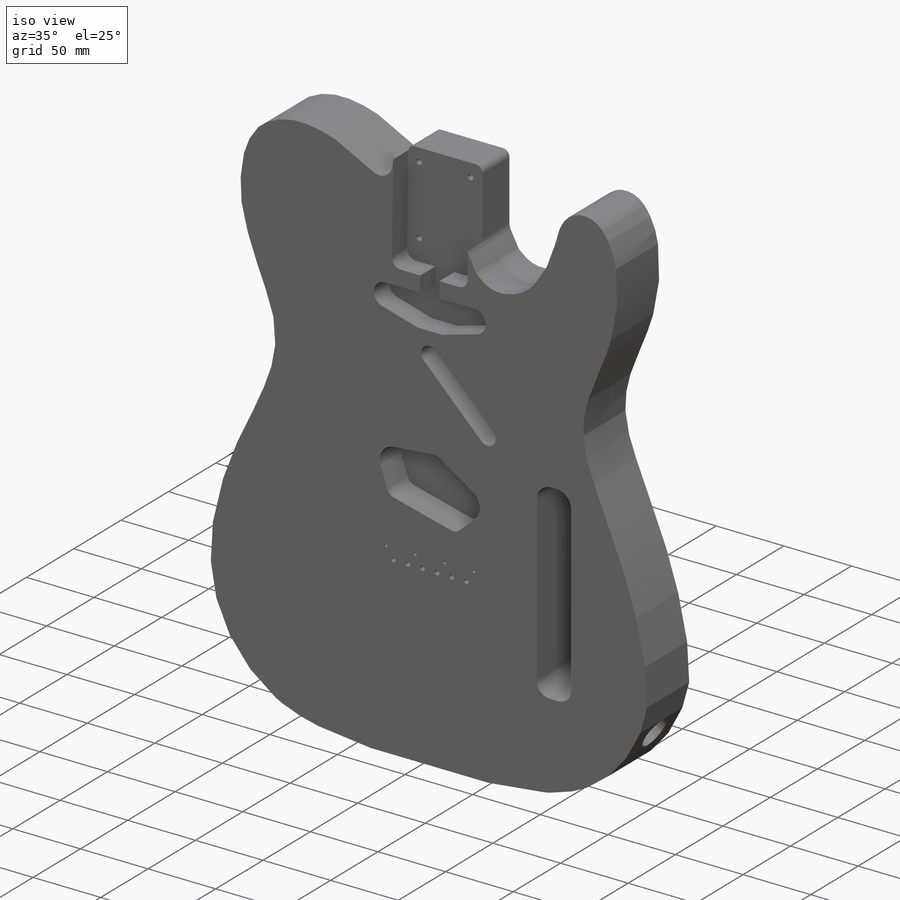
[diagram: iso view]
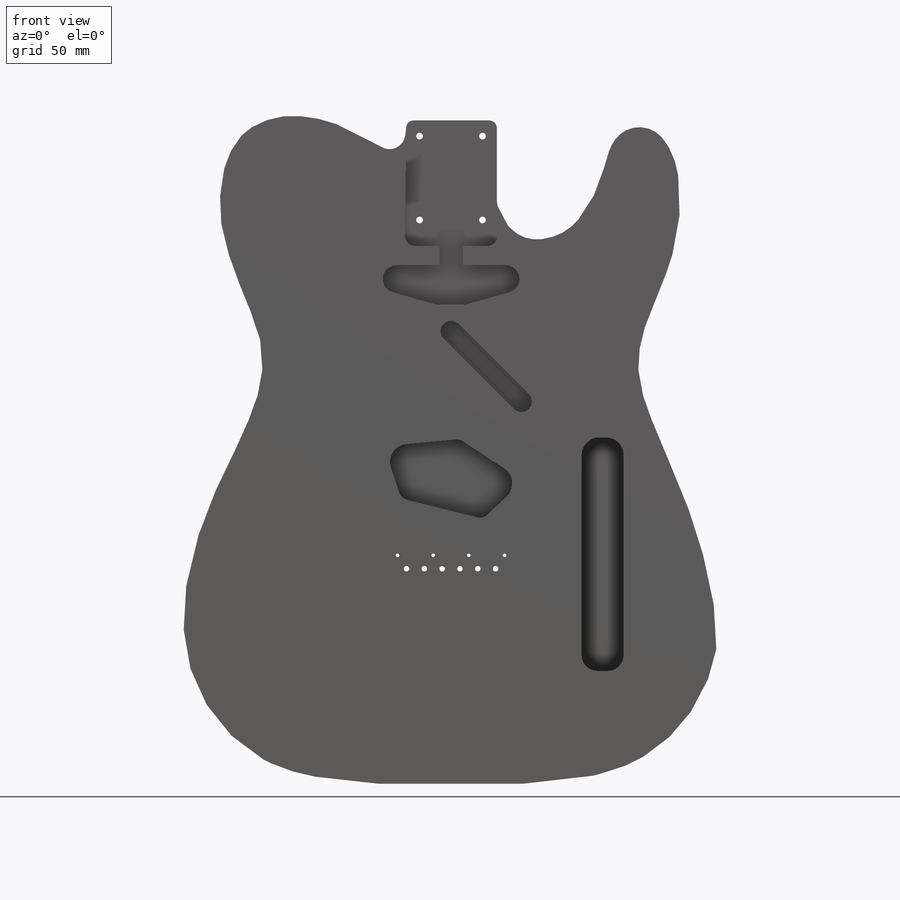
[diagram: front view]
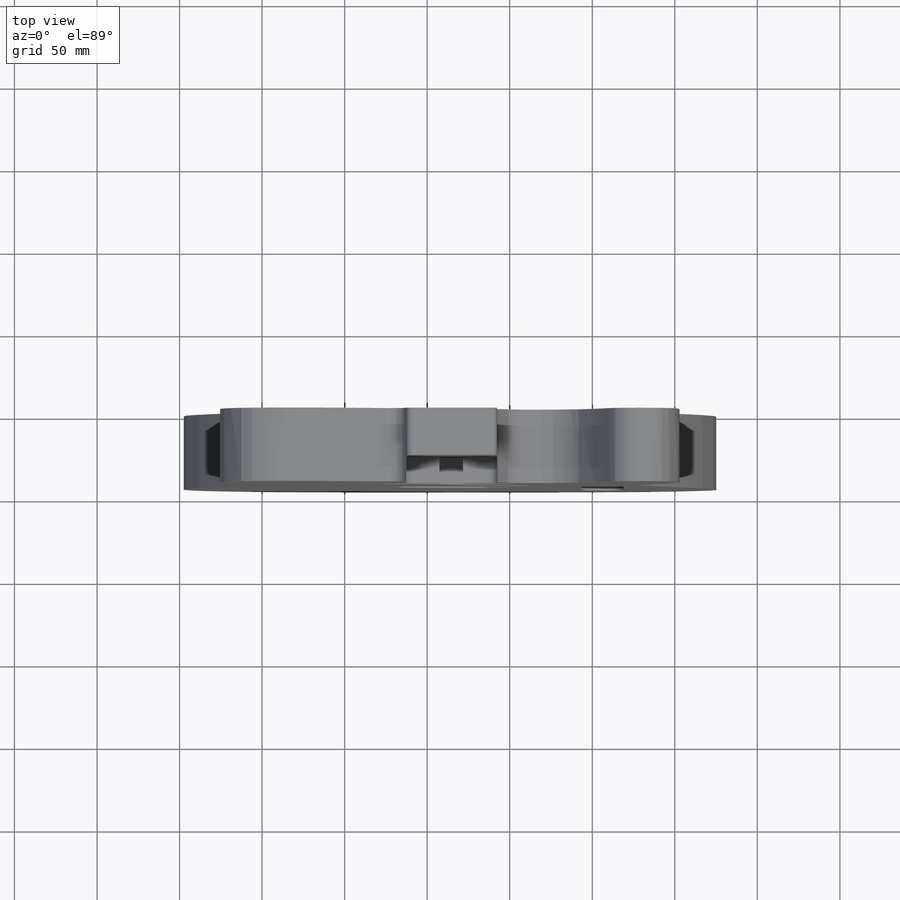
[diagram: top view]
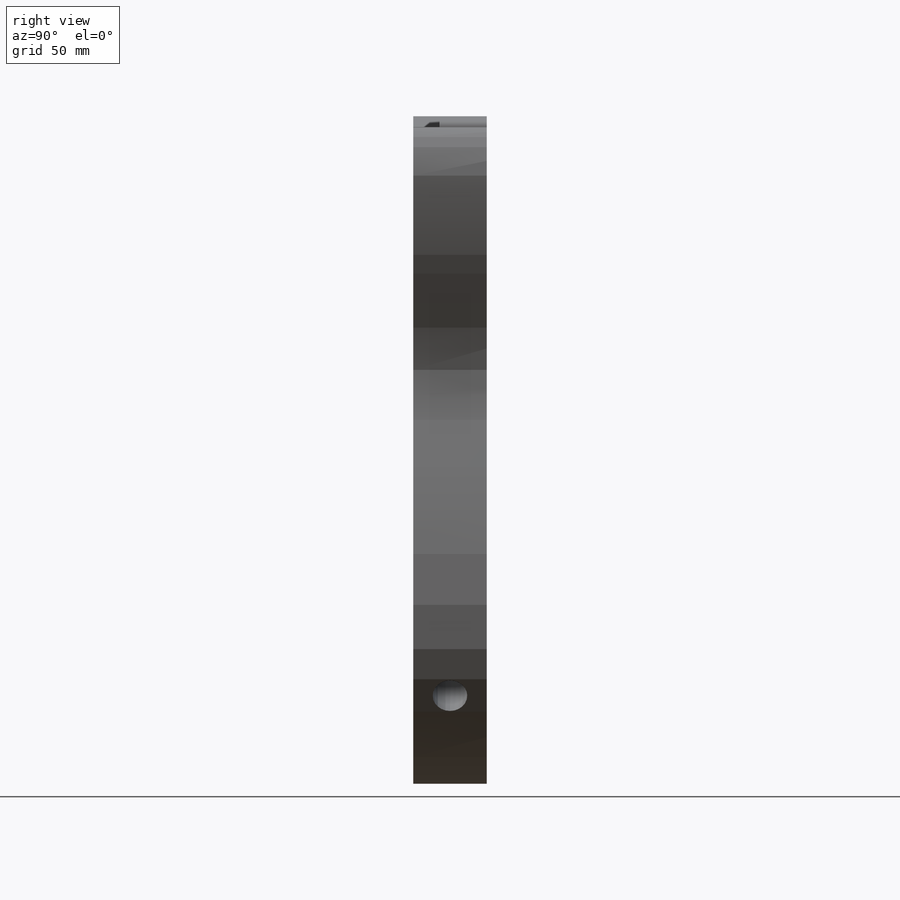
[diagram: right view]
SOLIDWORKS PART (.sldprt)
format: sldprt  version: not decoded by parser v0  size: 447,488 bytes
history: native  units: mm
features: sketch x7, cut_extrude x6, material x1, extrude x1 (+20 scaffold rows collapsed)
feature tree (35):
  scaffold x20  (default folders/planes/origin — collapsed)
  material  "Teak"
  sketch  "Sketch1"
  extrude  "Extrude1"  Depth=44.45mm
  sketch  "Sketch3"
  cut_extrude  "Cut-Extrude1"  Depth=15.875mm
  sketch  "Sketch4"
  cut_extrude  "Cut-Extrude2"  Depth=15.875mm
  sketch  "Sketch5"
  cut_extrude  "Cut-Extrude3"  Depth=21.59mm
  sketch  "Sketch6"
  cut_extrude  "Cut-Extrude4"  Depth=38.1mm
  sketch  "Sketch7"  dims[D1=~3.96875mm]
  cut_extrude  "Cut-Extrude5"  [1 undecoded]
  sketch  "Sketch9"  dims[D1=~6.776686mm]
  cut_extrude  "Cut-Extrude6"  Depth=60.96mm PW2_UID_val=0mm
decode coverage: 8 of 14 modeling features carry decoded parameters
note: ~ marks probable driven/reference dimensions
note: 1 parameter value undecoded
note: suppression state not decoded; provenance and decode notes live in map.json
